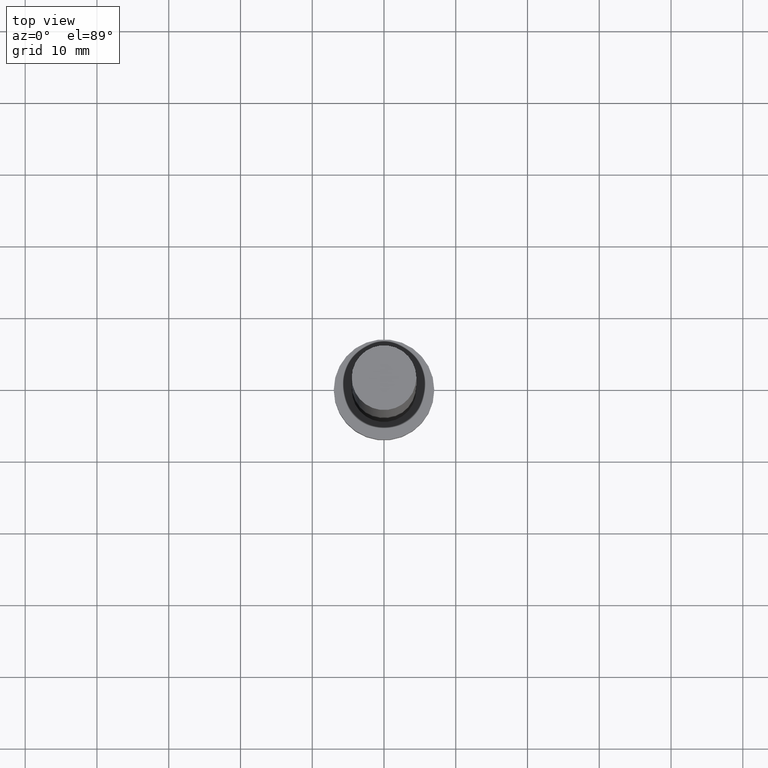
[diagram: clean part render]
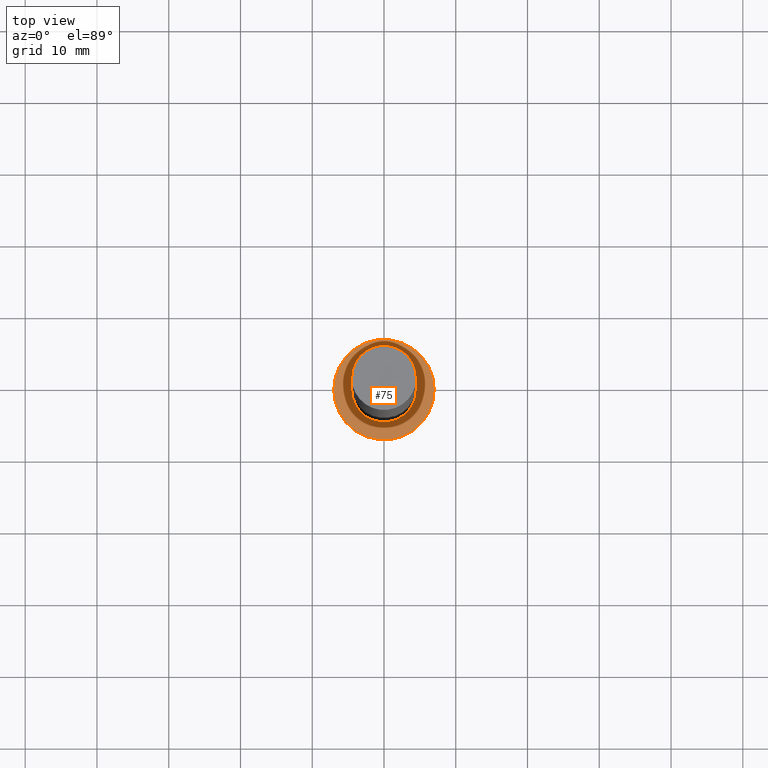
[diagram: same view with one face highlighted and labeled with its STEP entity id]
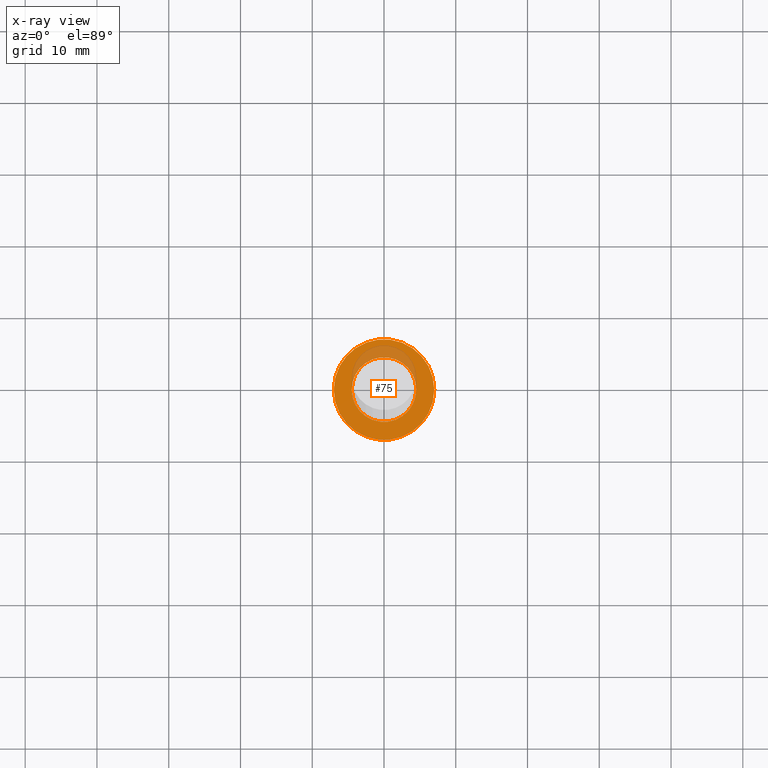
[diagram: x-ray of the same camera — body ghosted, the highlighted face saturated]
A machine part, top view. The second image highlights one B-rep face of the part: STEP entity #75.
The next image is the same camera in x-ray: the body ghosted, the highlighted face saturated — about 17% of this face is hidden behind the body in this view.
In plain terms, the highlighted planar face has unit normal (0, 0, 1).
Its self-contained STEP definition (entity closure, byte-faithful):
#2 = PLANE ( 'NONE',  #205 ) ;
#3 = CARTESIAN_POINT ( 'NONE',  ( 7.000000000000000000, 8.572527594031473190E-16, 5.000000000000000000 ) ) ;
#8 = CARTESIAN_POINT ( 'NONE',  ( 4.500000000000000000, 5.510910596163088569E-16, 5.000000000000000000 ) ) ;
#13 = DIRECTION ( 'NONE',  ( 1.000000000000000000, 0.000000000000000000, 0.000000000000000000 ) ) ;
#23 = DIRECTION ( 'NONE',  ( 0.000000000000000000, 0.000000000000000000, 1.000000000000000000 ) ) ;
#32 = CARTESIAN_POINT ( 'NONE',  ( -7.000000000000000000, 0.000000000000000000, 5.000000000000000000 ) ) ;
#36 = CIRCLE ( 'NONE', #185, 4.500000000000000000 ) ;
#48 = EDGE_CURVE ( 'NONE', #120, #119, #36, .T. ) ;
#56 = AXIS2_PLACEMENT_3D ( 'NONE', #153, #73, #109 ) ;
#61 = DIRECTION ( 'NONE',  ( 1.000000000000000000, 0.000000000000000000, 0.000000000000000000 ) ) ;
#69 = CIRCLE ( 'NONE', #56, 4.500000000000000000 ) ;
#73 = DIRECTION ( 'NONE',  ( 0.000000000000000000, 0.000000000000000000, 1.000000000000000000 ) ) ;
#75 = ADVANCED_FACE ( 'NONE', ( #201, #104 ), #2, .T. ) ;
#83 = EDGE_LOOP ( 'NONE', ( #177, #102 ) ) ;
#86 = DIRECTION ( 'NONE',  ( 0.000000000000000000, 0.000000000000000000, 1.000000000000000000 ) ) ;
#95 = DIRECTION ( 'NONE',  ( 0.000000000000000000, 0.000000000000000000, 1.000000000000000000 ) ) ;
#102 = ORIENTED_EDGE ( 'NONE', *, *, #48, .F. ) ;
#104 = FACE_OUTER_BOUND ( 'NONE', #239, .T. ) ;
#105 = VERTEX_POINT ( 'NONE', #3 ) ;
#109 = DIRECTION ( 'NONE',  ( 1.000000000000000000, 0.000000000000000000, 0.000000000000000000 ) ) ;
#119 = VERTEX_POINT ( 'NONE', #186 ) ;
#120 = VERTEX_POINT ( 'NONE', #8 ) ;
#123 = ORIENTED_EDGE ( 'NONE', *, *, #242, .T. ) ;
#133 = EDGE_CURVE ( 'NONE', #105, #238, #166, .T. ) ;
#134 = CARTESIAN_POINT ( 'NONE',  ( 0.000000000000000000, 0.000000000000000000, 5.000000000000000000 ) ) ;
#153 = CARTESIAN_POINT ( 'NONE',  ( 0.000000000000000000, 0.000000000000000000, 5.000000000000000000 ) ) ;
#159 = CARTESIAN_POINT ( 'NONE',  ( 0.000000000000000000, 0.000000000000000000, 5.000000000000000000 ) ) ;
#160 = DIRECTION ( 'NONE',  ( 1.000000000000000000, 0.000000000000000000, -0.000000000000000000 ) ) ;
#166 = CIRCLE ( 'NONE', #226, 7.000000000000000000 ) ;
#177 = ORIENTED_EDGE ( 'NONE', *, *, #246, .F. ) ;
#185 = AXIS2_PLACEMENT_3D ( 'NONE', #159, #23, #61 ) ;
#186 = CARTESIAN_POINT ( 'NONE',  ( -4.500000000000000000, 0.000000000000000000, 5.000000000000000000 ) ) ;
#189 = AXIS2_PLACEMENT_3D ( 'NONE', #190, #95, #13 ) ;
#190 = CARTESIAN_POINT ( 'NONE',  ( 0.000000000000000000, 0.000000000000000000, 5.000000000000000000 ) ) ;
#201 = FACE_BOUND ( 'NONE', #83, .T. ) ;
#204 = DIRECTION ( 'NONE',  ( 0.000000000000000000, 0.000000000000000000, 1.000000000000000000 ) ) ;
#205 = AXIS2_PLACEMENT_3D ( 'NONE', #134, #86, #160 ) ;
#221 = CARTESIAN_POINT ( 'NONE',  ( 0.000000000000000000, 0.000000000000000000, 5.000000000000000000 ) ) ;
#226 = AXIS2_PLACEMENT_3D ( 'NONE', #221, #204, #240 ) ;
#228 = ORIENTED_EDGE ( 'NONE', *, *, #133, .T. ) ;
#238 = VERTEX_POINT ( 'NONE', #32 ) ;
#239 = EDGE_LOOP ( 'NONE', ( #123, #228 ) ) ;
#240 = DIRECTION ( 'NONE',  ( 1.000000000000000000, 0.000000000000000000, 0.000000000000000000 ) ) ;
#242 = EDGE_CURVE ( 'NONE', #238, #105, #244, .T. ) ;
#244 = CIRCLE ( 'NONE', #189, 7.000000000000000000 ) ;
#246 = EDGE_CURVE ( 'NONE', #119, #120, #69, .T. ) ;